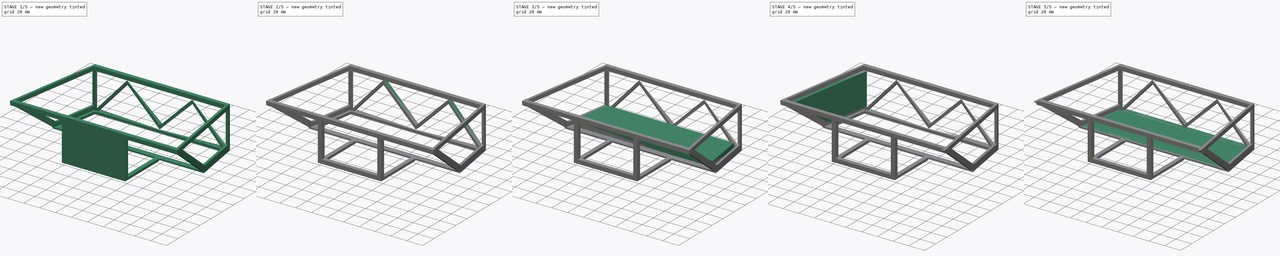
[diagram: build sequence overview — one tinted view per stage of 5, left to right]
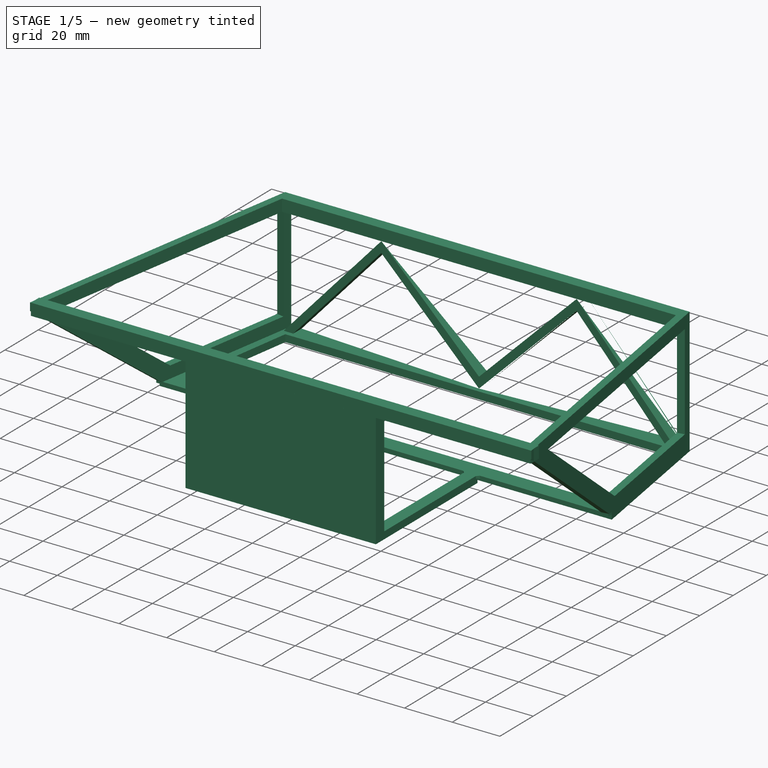
[diagram: stage 1 of 5 — iso view after this stage's code; geometry added in this stage tinted green]
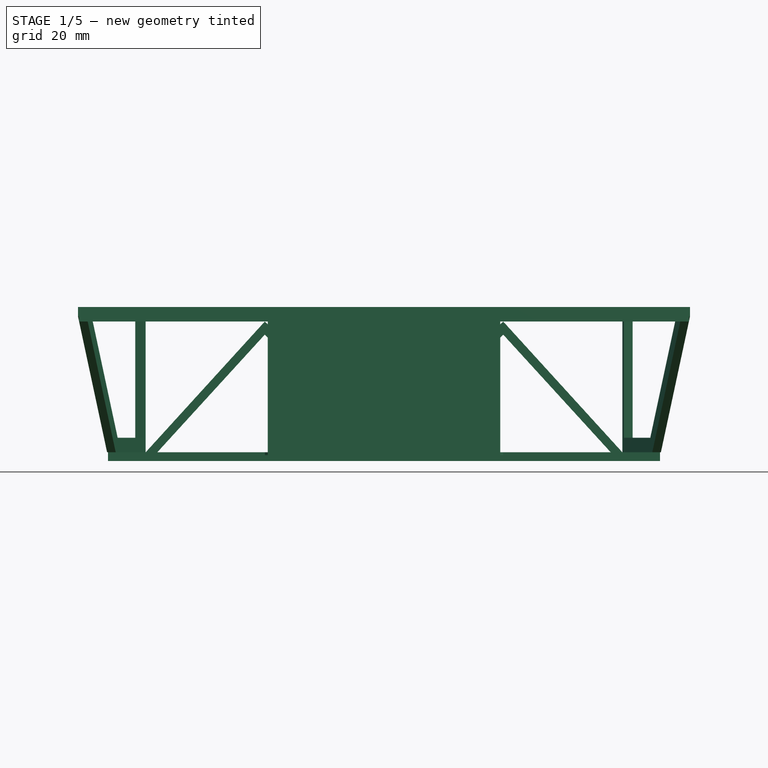
[diagram: stage 1 of 5 — front view after this stage's code; geometry added in this stage tinted green]
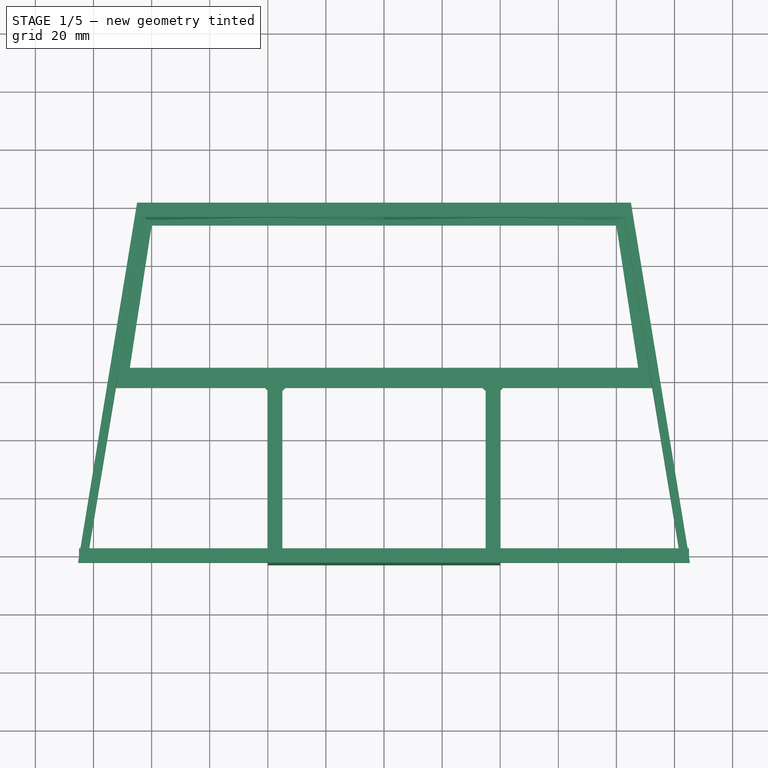
[diagram: stage 1 of 5 — top view after this stage's code; geometry added in this stage tinted green]
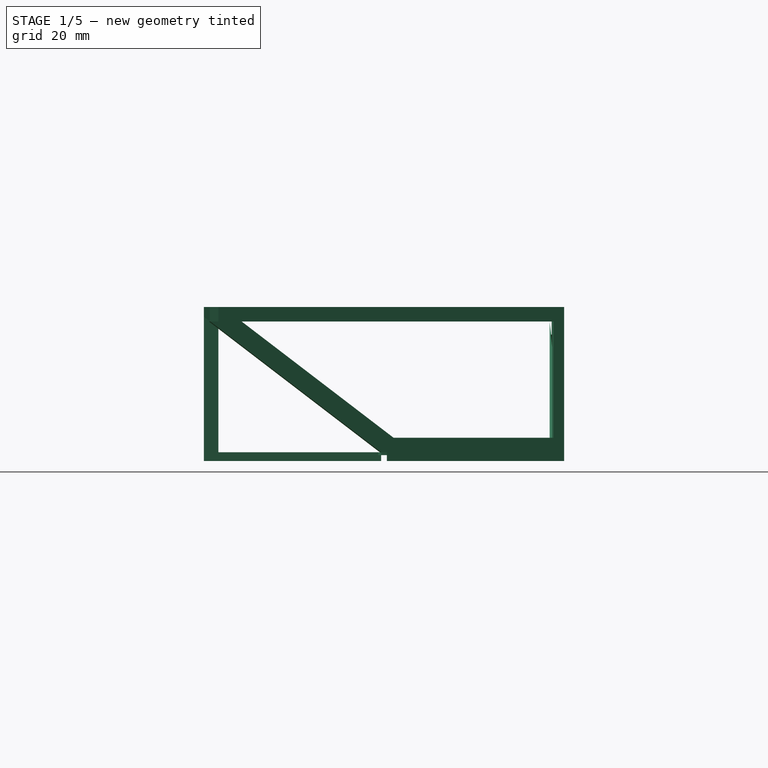
[diagram: stage 1 of 5 — right view after this stage's code; geometry added in this stage tinted green]
FCSTD DOCUMENT  (FreeCAD 0.18R4 (GitTag))
Label: soporte_celular_auto
License: CreativeCommons Attribution-ShareAlike
LicenseURL: http://creativecommons.org/licenses/by-sa/4.0/
objects: Sketcher::SketchObject×8, Part::Extrusion×8, Part::Box×8, Part::Cut×6, Part::MultiFuse×5, Part::Chamfer×4, Part::Feature×3
note: 42 computed .brp shape members not serialized (recipe doc carries the construction recipe); baked Part::Feature solids carry a one-line shape summary decoded from their .brp

FEATURE [Part::Box] Box006  label="Cube006"
  AttacherType = Attacher::AttachEngine3D
  Height = 50
  Length = 80
  Placement = pos=(-40,-63,0) rot=(0,0,1;0rad)
  Width = 5
FEATURE [Part::Box] Box007  label="Cube007"
  AttacherType = Attacher::AttachEngine3D
  Height = 43
  Length = 70
  Placement = pos=(-35,-63,5) rot=(0,0,1;0rad)
  Width = 5
FEATURE [Part::Feature] Fusion002004001  label="Fusion002005"
  shape: bbox 210.7 x 124 x 53 mm, 70 faces (baked)
FEATURE [Part::Chamfer] Chamfer
  Base = -> Fusion002004001
  Edges = 1 edges r=1: [Edge172]
FEATURE [Part::Chamfer] Chamfer001
  Base = -> Chamfer
  Edges = 1 edges r=1: [Edge33]
FEATURE [Part::Chamfer] Chamfer002
  Base = -> Chamfer001
  Edges = 1 edges r=1: [Edge14]
FEATURE [Part::Chamfer] Chamfer003  label="esqueleto"
  Base = -> Chamfer002
  Edges = 1 edges r=1: [Edge34]
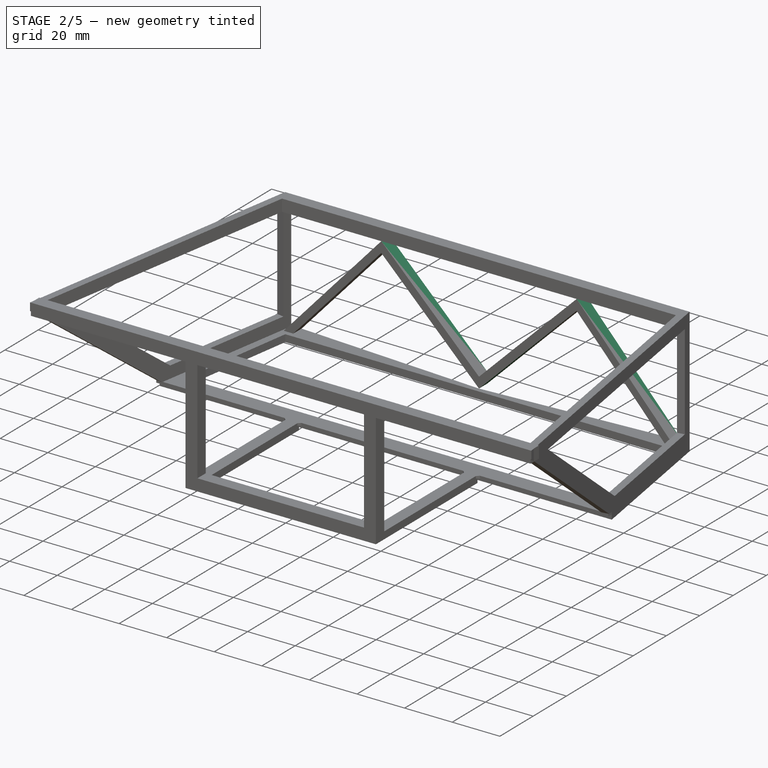
[diagram: stage 2 of 5 — iso view after this stage's code; geometry added in this stage tinted green]
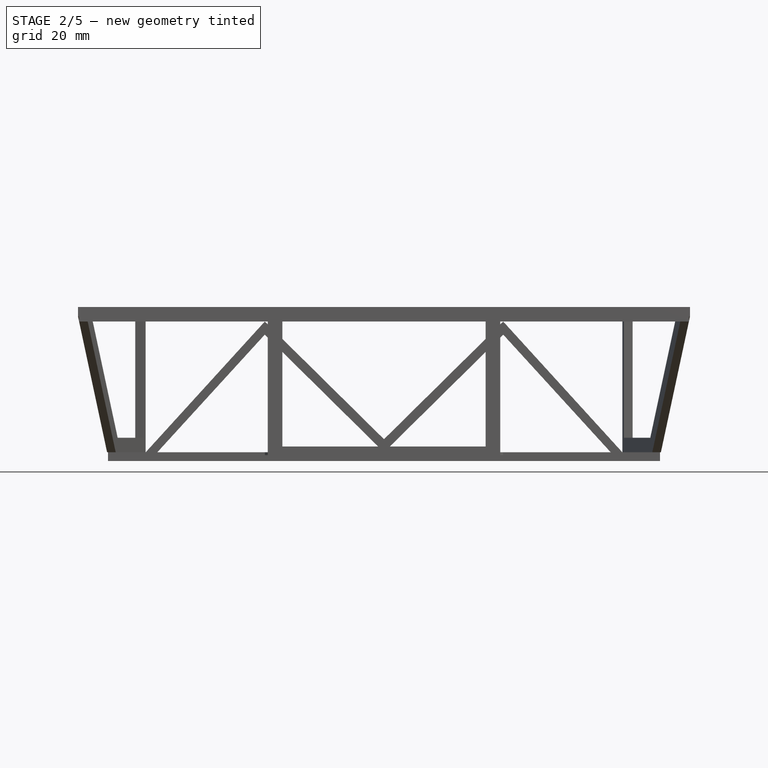
[diagram: stage 2 of 5 — front view after this stage's code; geometry added in this stage tinted green]
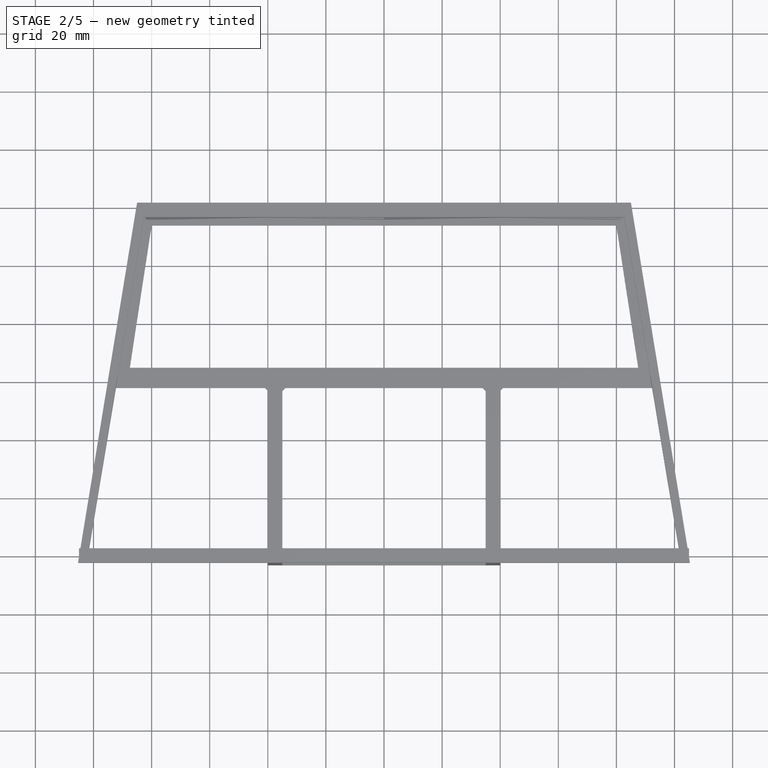
[diagram: stage 2 of 5 — top view after this stage's code; geometry added in this stage tinted green]
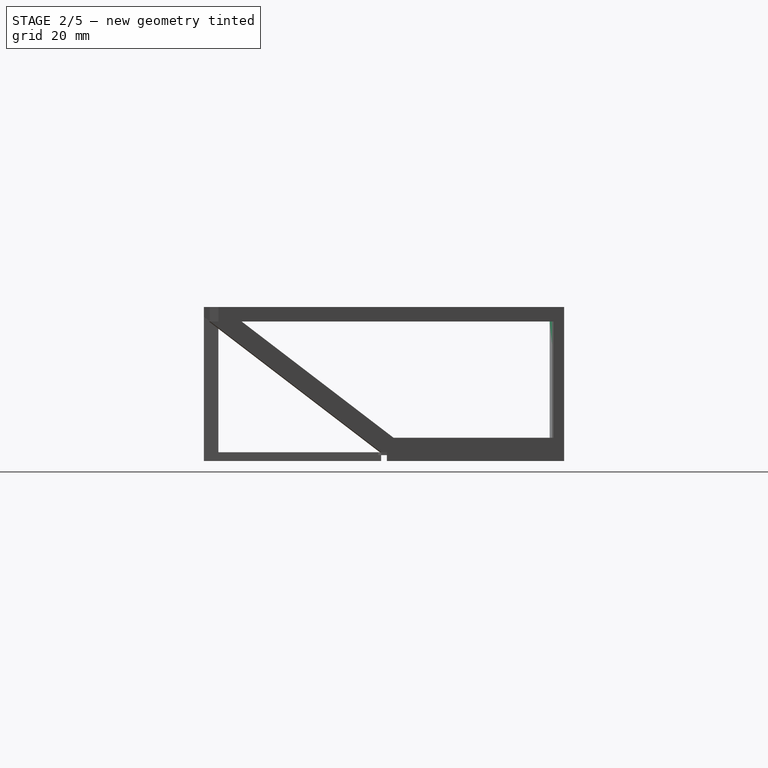
[diagram: stage 2 of 5 — right view after this stage's code; geometry added in this stage tinted green]
FEATURE [Part::Feature] Fusion002001  label="Fusion003"
  shape: bbox 212.1 x 128.8 x 53 mm, 34 faces (baked)
FEATURE [Sketcher::SketchObject] Sketch007
  ExternalGeometry = -> [Fusion002001]
  MapMode = 5
  Placement = pos=(0,61,0) rot=(0,0.707107,0.707107;3.14159rad)
  Support = -> [Fusion002001]
  sketch-geometry (10):
    g0: LineSegment StartX=-82.0395 StartY=3 StartZ=0 EndX=-41.0395 EndY=48 EndZ=0
    g1: LineSegment StartX=-41.0395 StartY=48 StartZ=0 EndX=0 EndY=7.5 EndZ=0
    g2: LineSegment StartX=0 StartY=7.5 StartZ=0 EndX=41.0395 EndY=48 EndZ=0
    g3: LineSegment StartX=41.0395 StartY=48 StartZ=0 EndX=82.04 EndY=3 EndZ=0
    g4: LineSegment StartX=82.04 StartY=3 StartZ=0 EndX=78.04 EndY=3 EndZ=0
    g5: LineSegment StartX=78.04 StartY=3 StartZ=0 EndX=41.0395 EndY=43.5 EndZ=0
    g6: LineSegment StartX=41.0395 StartY=43.5 StartZ=0 EndX=-7.1e-15 EndY=3 EndZ=0
    g7: LineSegment StartX=-7.1e-15 StartY=3 StartZ=0 EndX=-41.0395 EndY=43.5 EndZ=0
    g8: LineSegment StartX=-41.0395 StartY=43.5 StartZ=0 EndX=-78.0395 EndY=3 EndZ=0
    g9: LineSegment StartX=-78.0395 StartY=3 StartZ=0 EndX=-82.0395 EndY=3 EndZ=0
  constraints (29):
    c: PointOnObject(g0,g-3)
    c: Coincident(g0,g1)
    c: PointOnObject(g1,g-2)
    c: Coincident(g1,g2)
    c: Coincident(g2,g3)
    c: Coincident(g3,g4)
    c: PointOnObject(g4,g-5)
    c: Horizontal(g4)
    c: Coincident(g4,g5)
    c: Coincident(g5,g6)
    c: PointOnObject(g6,g-5)
    c: Coincident(g6,g7)
    c: Coincident(g7,g8)
    c: PointOnObject(g8,g-5)
    c: Coincident(g8,g9)
    c: Coincident(g9,g0)
    c: Coincident(g0,g-4)
    c: DistanceX(g-4,g0) = 41
    c: DistanceX(g2,g-6) = 41
    c: DistanceX(g6,g3) = 82.04
    c: DistanceX(g1,g3) = 82.04
    c: DistanceY(g2,g-6) = 0
    c: DistanceX(g2,g5) = 0
    c: DistanceX(g4,g3) = 4
    c: DistanceX(g0,g7) = 0
    c: DistanceX(g0,g8) = 4
    c: DistanceY(g7,g0) = 4.5
    c: DistanceY(g5,g2) = 4.5
    c: DistanceY(g6,g1) = 4.5
FEATURE [Part::Extrusion] Extrude008
  Base = -> Sketch007
  Dir = (0,1,-2e-16)
  DirMode = 2
  FaceMakerClass = Part::FaceMakerBullseye
  LengthFwd = 5
  LengthRev = 0
  Placement = pos=(0,-5,0) rot=(0,0,1;0rad)
  Solid = true
  Symmetric = false
FEATURE [Part::Box] Box002  label="Cube002"
  AttacherType = Attacher::AttachEngine3D
  Height = 5
  Length = 210
  Placement = pos=(-105,-63,48) rot=(0,0,1;0rad)
  Width = 5
FEATURE [Part::Box] Box004  label="Cube004"
  AttacherType = Attacher::AttachEngine3D
  Height = 3
  Length = 80
  Placement = pos=(-40,-63,0) rot=(0,0,1;0rad)
  Width = 61
FEATURE [Part::Box] Box005  label="Cube005"
  AttacherType = Attacher::AttachEngine3D
  Height = 3
  Length = 70
  Placement = pos=(-35,-58,0) rot=(0,0,1;0rad)
  Width = 56
FEATURE [Part::Cut] Cut004
  Base = -> Box004
  Tool = -> Box005
FEATURE [Part::Cut] Cut005
  Base = -> Box006
  Tool = -> Box007
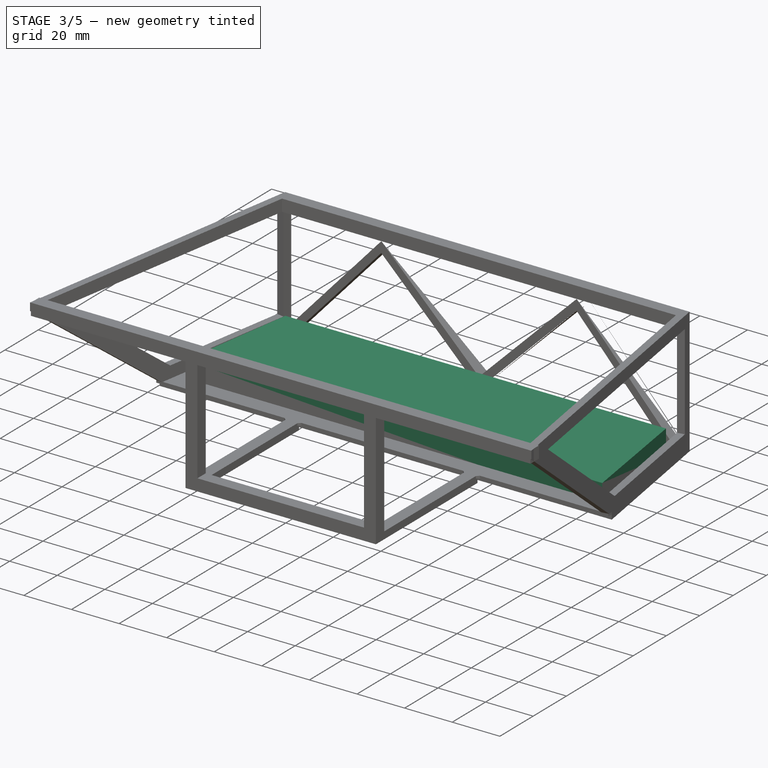
[diagram: stage 3 of 5 — iso view after this stage's code; geometry added in this stage tinted green]
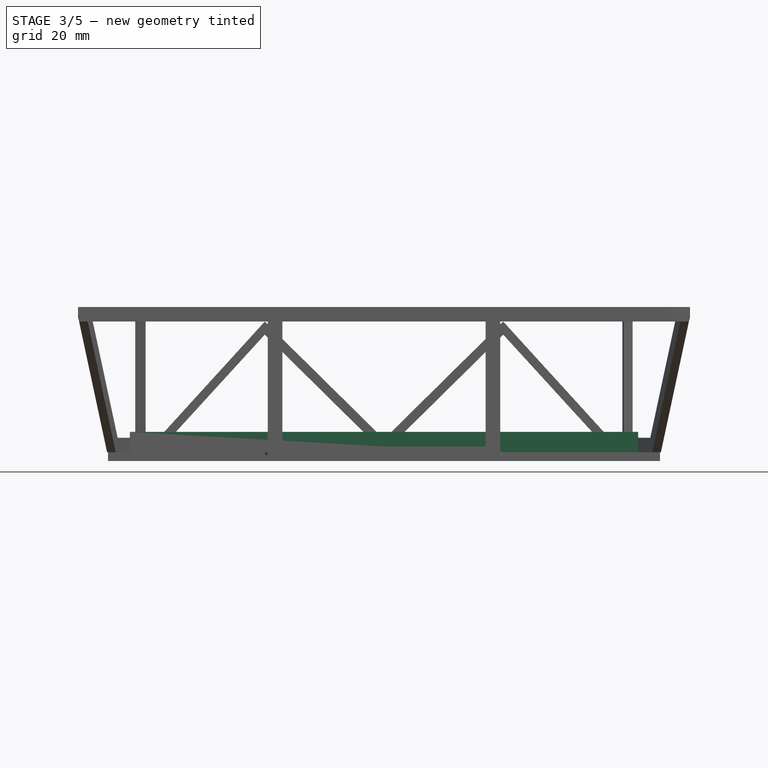
[diagram: stage 3 of 5 — front view after this stage's code; geometry added in this stage tinted green]
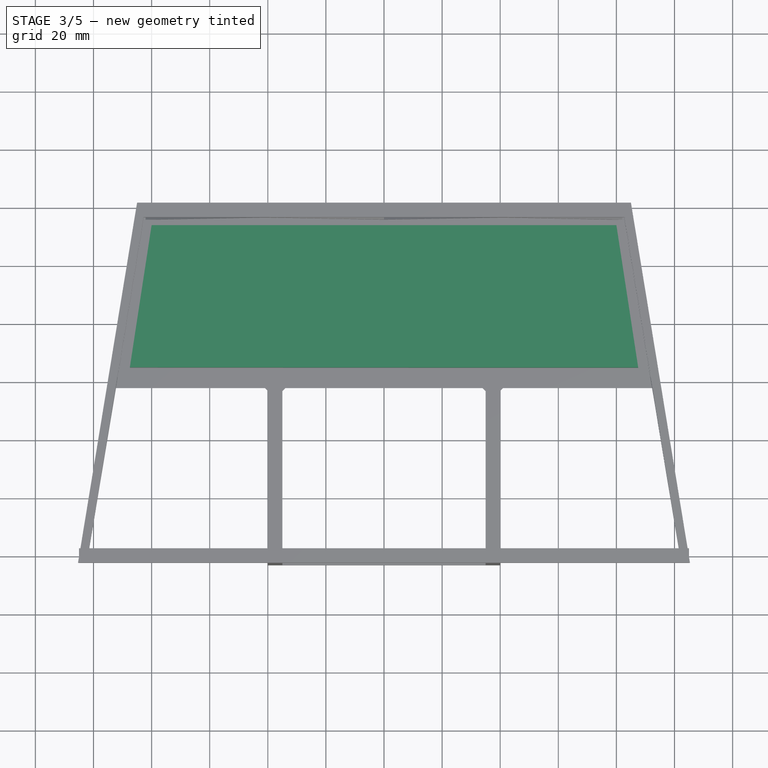
[diagram: stage 3 of 5 — top view after this stage's code; geometry added in this stage tinted green]
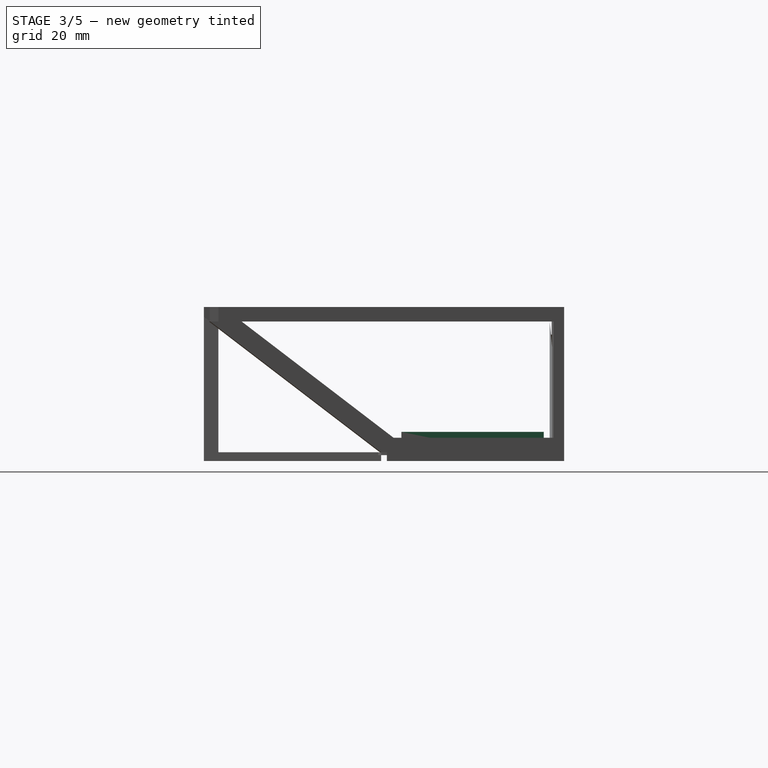
[diagram: stage 3 of 5 — right view after this stage's code; geometry added in this stage tinted green]
FEATURE [Part::Feature] Fusion001
  shape: bbox 190 x 63 x 3 mm, 10 faces (baked)
FEATURE [Sketcher::SketchObject] Sketch002
  ExternalGeometry = -> [Fusion001]
  sketch-geometry (4):
    g0: LineSegment StartX=-87.5 StartY=0 StartZ=0 EndX=87.5 EndY=0 EndZ=0
    g1: LineSegment StartX=-87.5 StartY=0 StartZ=0 EndX=-80 EndY=49 EndZ=0
    g2: LineSegment StartX=87.5 StartY=0 StartZ=0 EndX=80 EndY=49 EndZ=0
    g3: LineSegment StartX=-80 StartY=49 StartZ=0 EndX=80 EndY=49 EndZ=0
  constraints (10):
    c: PointOnObject(g0,g-1)
    c: Symmetric(g0,g0,g-2)
    c: DistanceX(g0,g0) = 175
    c: Coincident(g1,g0)
    c: Coincident(g2,g0)
    c: Coincident(g3,g1)
    c: Coincident(g3,g2)
    c: Symmetric(g1,g2,g-2)
    c: DistanceX(g3,g3) = 160
    c: DistanceY(g0,g2) = 49
FEATURE [Part::Extrusion] Extrude002
  Base = -> Sketch002
  Dir = (0,0,1)
  DirMode = 2
  FaceMakerClass = Part::FaceMakerBullseye
  LengthFwd = 10
  LengthRev = 0
  Placement = pos=(0,5,0) rot=(0,0,1;0rad)
  Solid = true
  Symmetric = false
FEATURE [Part::Box] Box001  label="Cube001"
  AttacherType = Attacher::AttachEngine3D
  Height = 5
  Length = 170
  Placement = pos=(-85,56,48) rot=(0,0,1;0rad)
  Width = 5
FEATURE [Part::MultiFuse] Fusion002002
  Shapes = -> [Fusion002001,Extrude008]
FEATURE [Part::Box] Box003  label="Cube003"
  AttacherType = Attacher::AttachEngine3D
  Height = 5
  Length = 220
  Placement = pos=(-110,-68,48) rot=(0,0,1;0rad)
  Width = 5
FEATURE [Part::MultiFuse] Fusion002003
  Shapes = -> [Fusion002002,Box002]
FEATURE [Part::Cut] Cut003
  Base = -> Fusion002003
  Tool = -> Box003
FEATURE [Part::MultiFuse] Fusion002004
  Shapes = -> [Cut003,Cut004,Cut005]
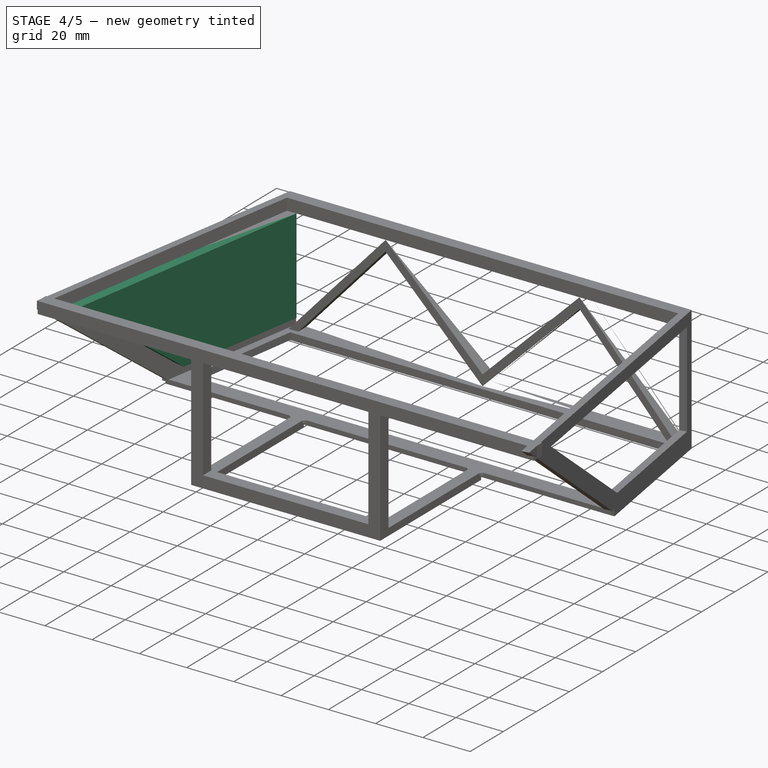
[diagram: stage 4 of 5 — iso view after this stage's code; geometry added in this stage tinted green]
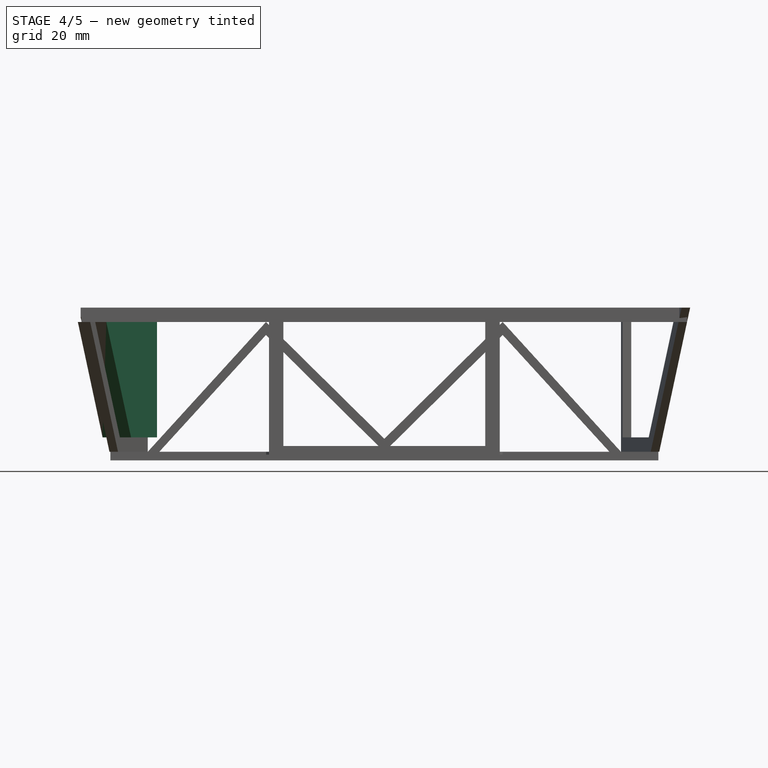
[diagram: stage 4 of 5 — front view after this stage's code; geometry added in this stage tinted green]
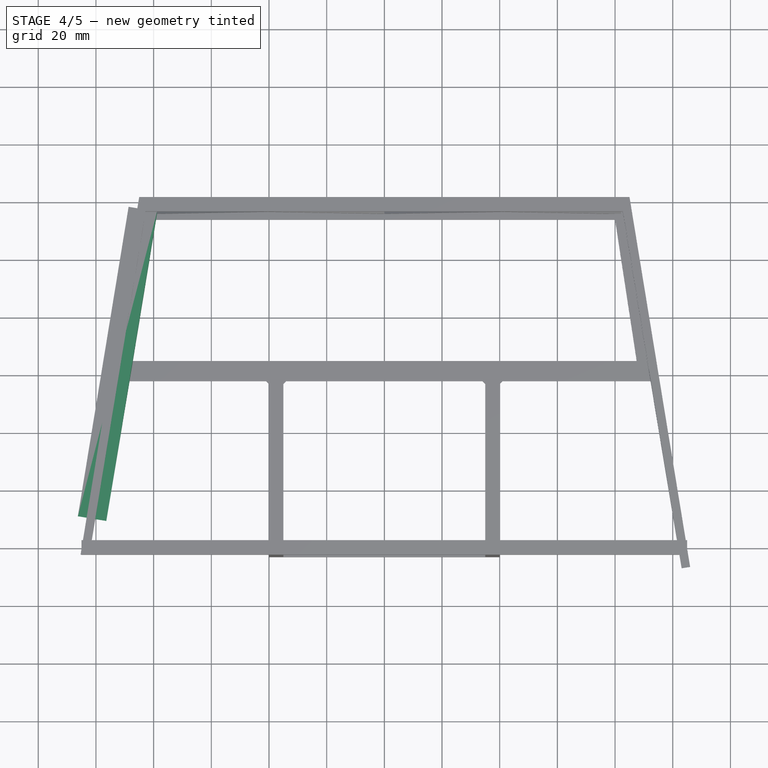
[diagram: stage 4 of 5 — top view after this stage's code; geometry added in this stage tinted green]
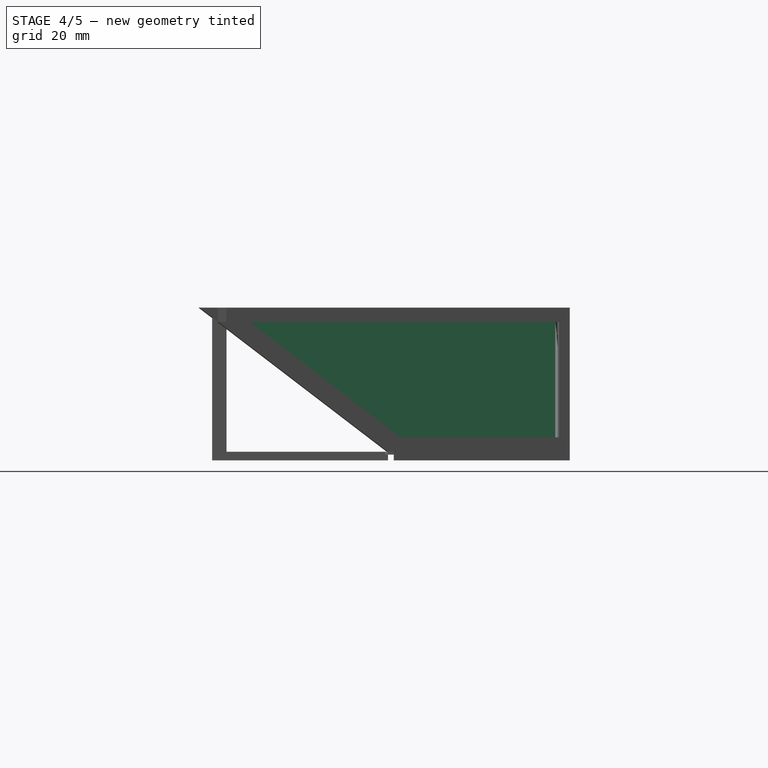
[diagram: stage 4 of 5 — right view after this stage's code; geometry added in this stage tinted green]
FEATURE [Part::Cut] Cut  label="base"
  Base = -> Fusion001
  Tool = -> Extrude002
FEATURE [Sketcher::SketchObject] Sketch003
  ExternalGeometry = -> [Cut]
  MapMode = 5
  Placement = pos=(92.5137,15.1662,-2.33e-14) rot=(0.51489,0.606172,0.606172;2.19062rad)
  Support = -> [Cut]
  sketch-geometry (4):
    g0: LineSegment StartX=-17.3423 StartY=3 StartZ=0 EndX=46.4456 EndY=3 EndZ=0
    g1: LineSegment StartX=46.4456 StartY=3 StartZ=0 EndX=46.4456 EndY=53 EndZ=0
    g2: LineSegment StartX=46.4456 StartY=53 StartZ=0 EndX=-83.5544 EndY=53 EndZ=0
    g3: LineSegment StartX=-83.5544 StartY=53 StartZ=0 EndX=-17.3423 EndY=3 EndZ=0
  constraints (10):
    c: Coincident(g0,g-4)
    c: Coincident(g0,g-3)
    c: Coincident(g1,g0)
    c: Vertical(g1)
    c: DistanceY(g1,g1) = 50
    c: Coincident(g2,g1)
    c: Horizontal(g2)
    c: Coincident(g3,g2)
    c: DistanceX(g2,g2) = 130
    c: Coincident(g0,g3)
FEATURE [Part::Extrusion] Extrude003
  Base = -> Sketch003
  Dir = (0.986828,0.161775,-2e-16)
  DirMode = 2
  FaceMakerClass = Part::FaceMakerBullseye
  LengthFwd = -3
  LengthRev = 0
  Solid = true
  Symmetric = false
FEATURE [Sketcher::SketchObject] Sketch004
  ExternalGeometry = -> [Cut]
  MapMode = 5
  Placement = pos=(-92.5137,15.1662,-4.1e-15) rot=(-0.51489,0.606172,0.606172;4.09257rad)
  Support = -> [Cut]
  sketch-geometry (4):
    g0: LineSegment StartX=-46.4456 StartY=3 StartZ=0 EndX=17.3423 EndY=3 EndZ=0
    g1: LineSegment StartX=-46.4456 StartY=3 StartZ=0 EndX=-46.4456 EndY=53 EndZ=0
    g2: LineSegment StartX=-46.4456 StartY=53 StartZ=0 EndX=83.5544 EndY=53 EndZ=0
    g3: LineSegment StartX=83.5544 StartY=53 StartZ=0 EndX=17.3423 EndY=3 EndZ=0
  constraints (10):
    c: Coincident(g0,g-4)
    c: Coincident(g0,g-3)
    c: Vertical(g1)
    c: Coincident(g0,g1)
    c: DistanceY(g1,g1) = 50
    c: Coincident(g2,g1)
    c: Horizontal(g2)
    c: DistanceX(g2,g2) = 130
    c: Coincident(g3,g2)
    c: Coincident(g3,g0)
FEATURE [Part::Extrusion] Extrude005
  Base = -> Sketch004
  Dir = (-0.986828,0.161775,-1e-16)
  DirMode = 2
  FaceMakerClass = Part::FaceMakerBullseye
  LengthFwd = -3
  LengthRev = 0
  Solid = true
  Symmetric = false
FEATURE [Sketcher::SketchObject] Sketch005
  ExternalGeometry = -> [Extrude005]
  MapMode = 5
  Placement = pos=(-92.5137,15.1662,-1.36e-14) rot=(-0.51489,0.606172,0.606172;4.09257rad)
  Support = -> [Extrude005]
  sketch-geometry (4):
    g0: LineSegment StartX=-41.4456 StartY=8 StartZ=0 EndX=14.3423 EndY=8 EndZ=0
    g1: LineSegment StartX=14.3423 StartY=8 StartZ=0 EndX=67.312 EndY=48 EndZ=0
    g2: LineSegment StartX=67.312 StartY=48 StartZ=0 EndX=-41.4456 EndY=48 EndZ=0
    g3: LineSegment StartX=-41.4456 StartY=48 StartZ=0 EndX=-41.4456 EndY=8 EndZ=0
  constraints (12):
    c: Horizontal(g0)
    c: Coincident(g0,g1)
    c: Coincident(g1,g2)
    c: Horizontal(g2)
    c: Coincident(g2,g3)
    c: Vertical(g3)
    c: Coincident(g0,g3)
    c: DistanceY(g2,g-5) = 5
    c: DistanceY(g-5,g0) = 5
    c: Parallel(g1,g-6)
    c: DistanceX(g-5,g0) = 5
    c: DistanceX(g0,g-6) = 3
FEATURE [Part::Extrusion] Extrude006
  Base = -> Sketch005
  Dir = (-0.986828,0.161775,-1e-16)
  DirMode = 2
  FaceMakerClass = Part::FaceMakerBullseye
  LengthFwd = 10
  LengthRev = 0
  Placement = pos=(7,0,0) rot=(0,0,1;0rad)
  Solid = true
  Symmetric = false
FEATURE [Sketcher::SketchObject] Sketch006
  ExternalGeometry = -> [Extrude003]
  MapMode = 5
  Placement = pos=(92.5137,15.1662,-1.75e-14) rot=(0.51489,0.606172,0.606172;2.19062rad)
  Support = -> [Extrude003]
  sketch-geometry (4):
    g0: LineSegment StartX=-14.3423 StartY=8 StartZ=0 EndX=41.4456 EndY=8 EndZ=0
    g1: LineSegment StartX=41.4456 StartY=8 StartZ=0 EndX=41.4456 EndY=48 EndZ=0
    g2: LineSegment StartX=41.4456 StartY=48 StartZ=0 EndX=-67.312 EndY=48 EndZ=0
    g3: LineSegment StartX=-67.312 StartY=48 StartZ=0 EndX=-14.3423 EndY=8 EndZ=0
  constraints (12):
    c: Horizontal(g0)
    c: Coincident(g0,g1)
    c: Vertical(g1)
    c: Coincident(g1,g2)
    c: Horizontal(g2)
    c: Coincident(g2,g3)
    c: Coincident(g0,g3)
    c: Parallel(g-3,g3)
    c: DistanceY(g1,g-5) = 5
    c: DistanceY(g-6,g0) = 5
    c: DistanceX(g-6,g0) = 3
    c: DistanceX(g1,g-5) = 5
FEATURE [Part::Extrusion] Extrude007
  Base = -> Sketch006
  Dir = (0.986828,0.161775,-2e-16)
  DirMode = 2
  FaceMakerClass = Part::FaceMakerBullseye
  LengthFwd = 10
  LengthRev = 0
  Placement = pos=(-8,0,0) rot=(0,0,1;0rad)
  Solid = true
  Symmetric = false
FEATURE [Part::Cut] Cut002  label="lateral2"
  Base = -> Extrude003
  Tool = -> Extrude007
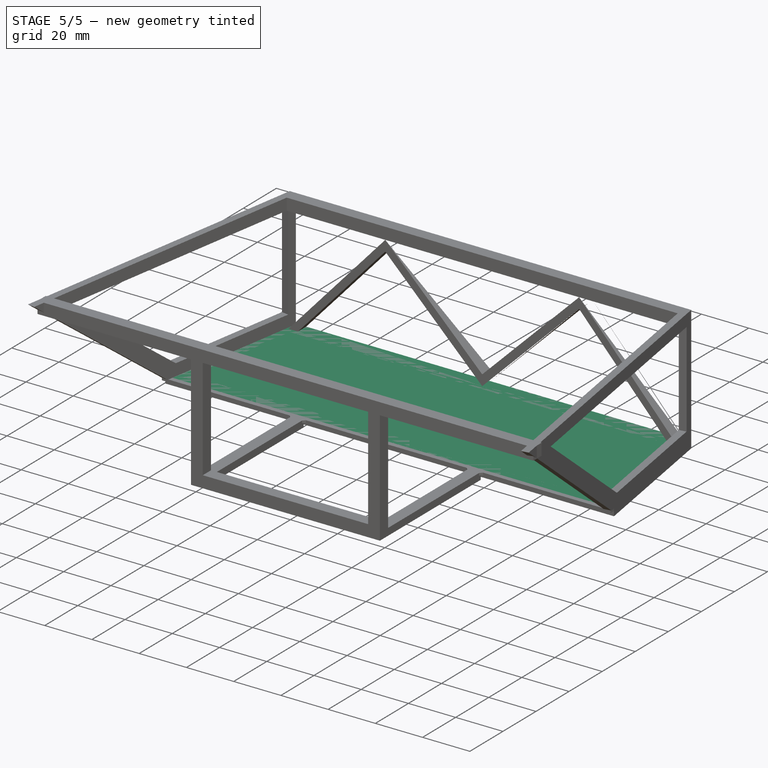
[diagram: stage 5 of 5 — iso view after this stage's code; geometry added in this stage tinted green]
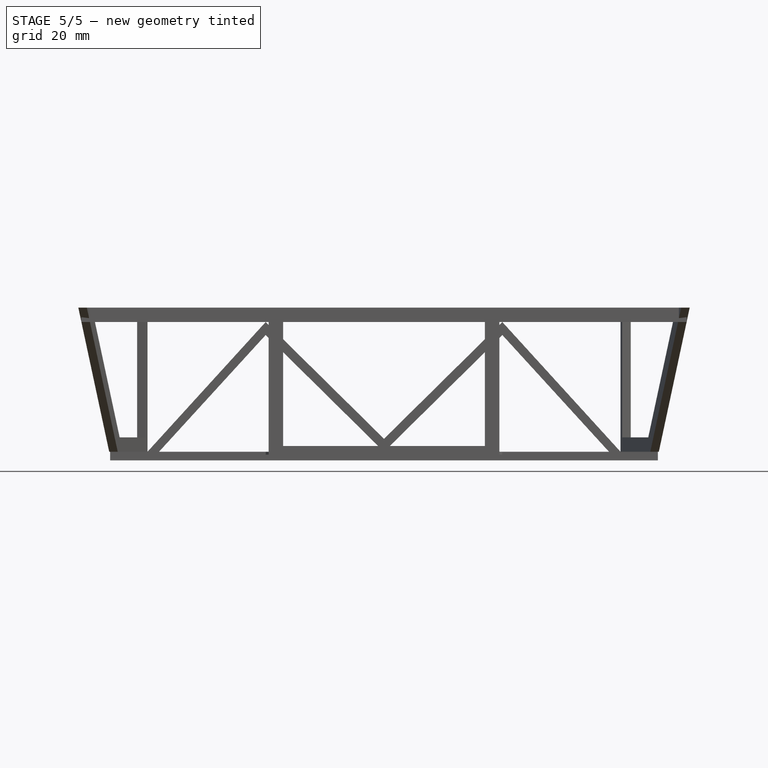
[diagram: stage 5 of 5 — front view after this stage's code; geometry added in this stage tinted green]
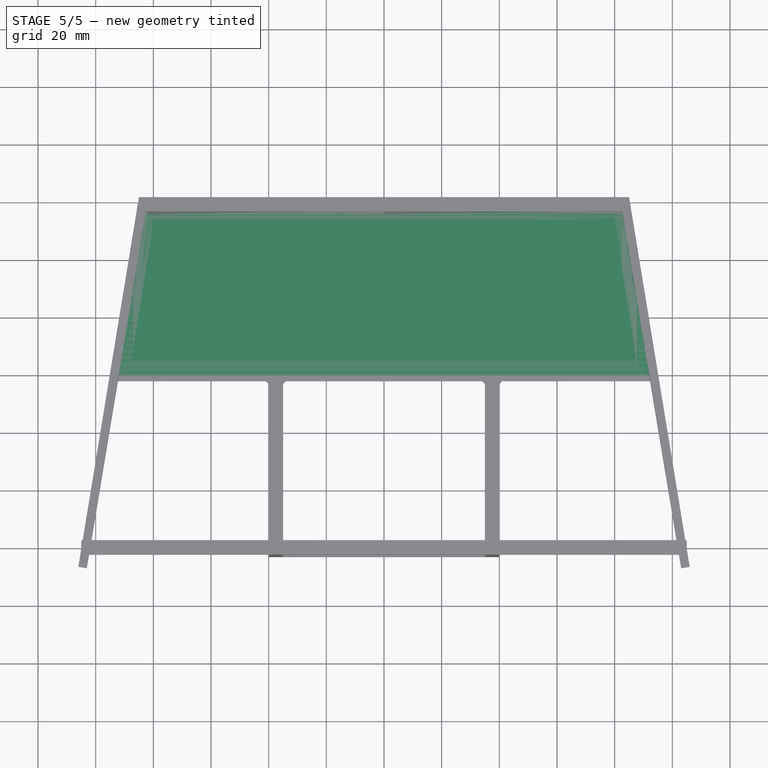
[diagram: stage 5 of 5 — top view after this stage's code; geometry added in this stage tinted green]
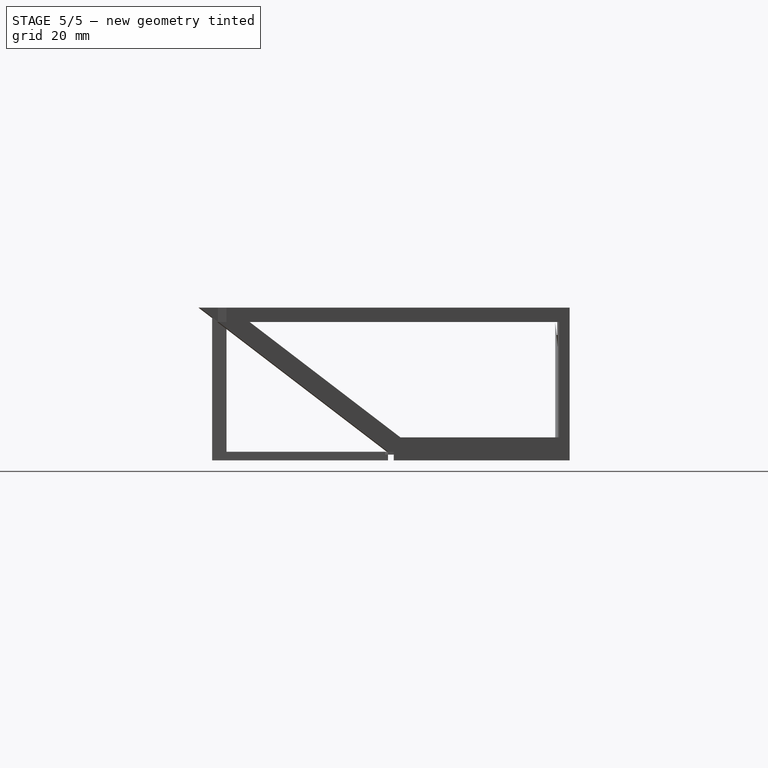
[diagram: stage 5 of 5 — right view after this stage's code; geometry added in this stage tinted green]
FEATURE [Sketcher::SketchObject] Sketch
  sketch-geometry (4):
    g0: LineSegment StartX=-95 StartY=0 StartZ=0 EndX=95 EndY=-9e-16 EndZ=0
    g1: LineSegment StartX=-95 StartY=0 StartZ=0 EndX=-85 EndY=61 EndZ=0
    g2: LineSegment StartX=95 StartY=-9e-16 StartZ=0 EndX=85 EndY=61 EndZ=0
    g3: LineSegment StartX=-85 StartY=61 StartZ=0 EndX=85 EndY=61 EndZ=0
  constraints (10):
    c: PointOnObject(g0,g-1)
    c: Symmetric(g0,g0,g-2)
    c: DistanceX(g0,g0) = 190
    c: Coincident(g1,g0)
    c: Coincident(g2,g0)
    c: Coincident(g3,g1)
    c: Coincident(g3,g2)
    c: Symmetric(g1,g2,g-2)
    c: DistanceX(g3,g3) = 170
    c: DistanceY(g0,g2) = 61
FEATURE [Part::Extrusion] Extrude
  Base = -> Sketch
  Dir = (0,0,1)
  DirMode = 2
  FaceMakerClass = Part::FaceMakerBullseye
  LengthFwd = 2
  LengthRev = 0
  Solid = true
  Symmetric = false
FEATURE [Sketcher::SketchObject] Sketch001
  sketch-geometry (4):
    g0: LineSegment StartX=-95 StartY=0 StartZ=0 EndX=95 EndY=-9e-16 EndZ=0
    g1: LineSegment StartX=-95 StartY=0 StartZ=0 EndX=-85 EndY=61 EndZ=0
    g2: LineSegment StartX=95 StartY=-9e-16 StartZ=0 EndX=85 EndY=61 EndZ=0
    g3: LineSegment StartX=-85 StartY=61 StartZ=0 EndX=85 EndY=61 EndZ=0
  constraints (10):
    c: PointOnObject(g0,g-1)
    c: Symmetric(g0,g0,g-2)
    c: DistanceX(g0,g0) = 190
    c: Coincident(g1,g0)
    c: Coincident(g2,g0)
    c: Coincident(g3,g1)
    c: Coincident(g3,g2)
    c: Symmetric(g1,g2,g-2)
    c: DistanceX(g3,g3) = 170
    c: DistanceY(g0,g2) = 61
FEATURE [Part::Extrusion] Extrude001
  Base = -> Sketch001
  Dir = (0,0,1)
  DirMode = 2
  FaceMakerClass = Part::FaceMakerBullseye
  LengthFwd = 1
  LengthRev = 0
  Placement = pos=(0,0,2) rot=(0,0,1;0rad)
  Solid = true
  Symmetric = false
FEATURE [Part::Box] Box  label="Cube"
  AttacherType = Attacher::AttachEngine3D
  Height = 1
  Length = 190
  Placement = pos=(-95,-2,2) rot=(0,0,1;0rad)
  Width = 2
FEATURE [Part::MultiFuse] Fusion
  Shapes = -> [Box,Extrude001,Extrude]
FEATURE [Part::Cut] Cut001  label="lateral1"
  Base = -> Extrude005
  Tool = -> Extrude006
FEATURE [Part::MultiFuse] Fusion002
  Shapes = -> [Cut,Cut001,Cut002,Box001]
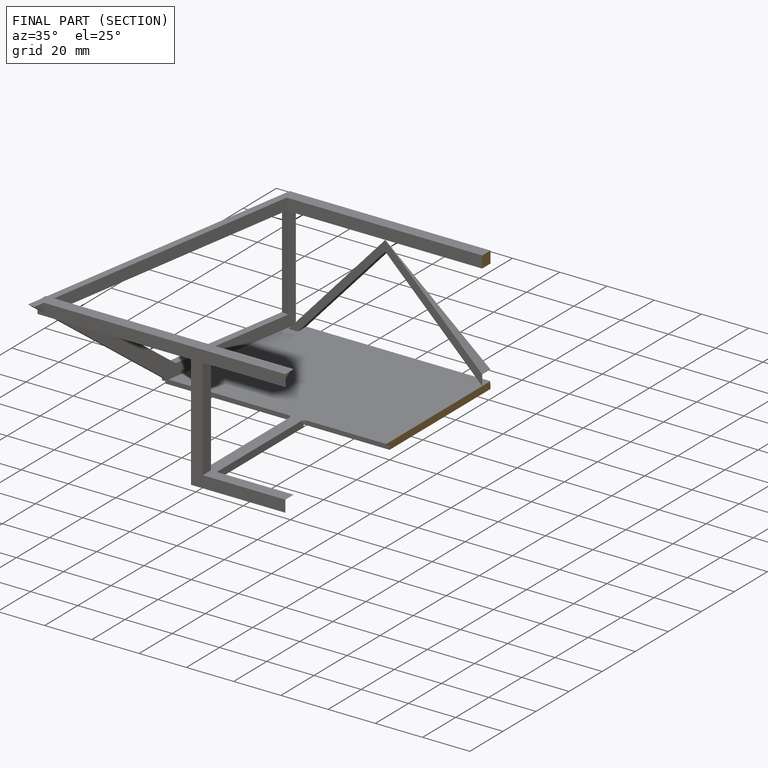
[diagram: finished part — half-section view (interior)]
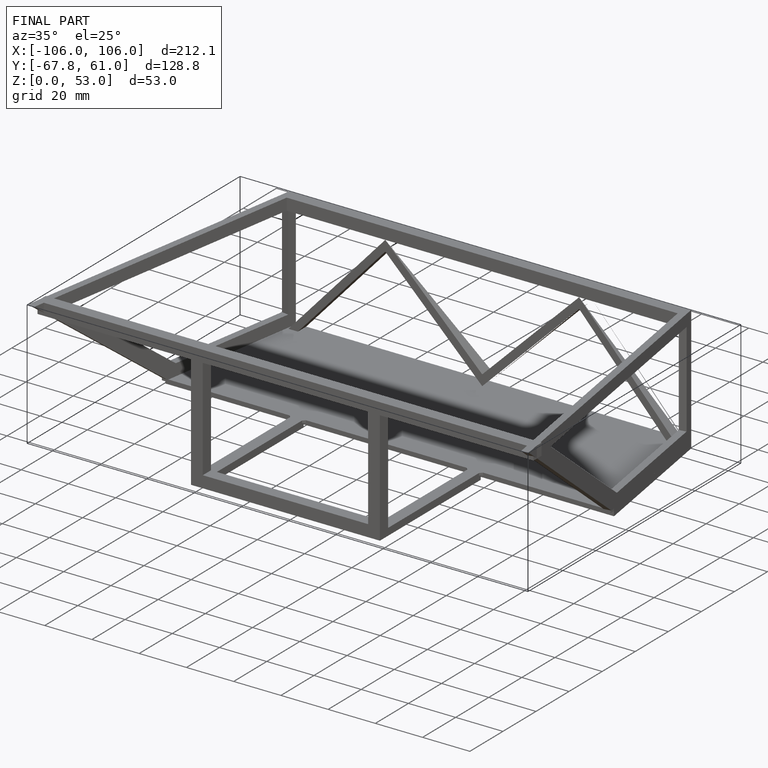
[diagram: finished part — iso view with bounding-box wireframe]
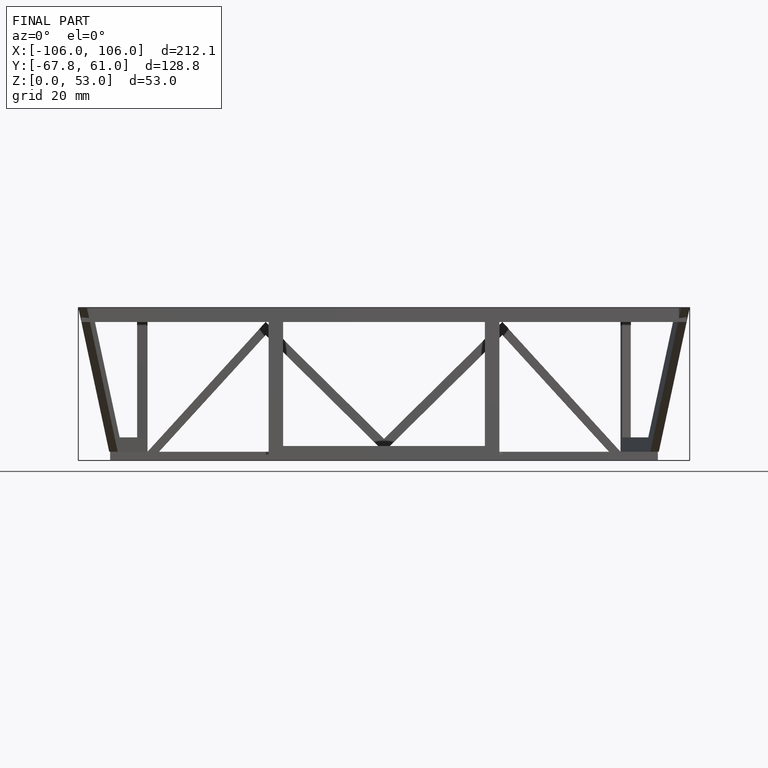
[diagram: finished part — front view with bounding-box wireframe]
